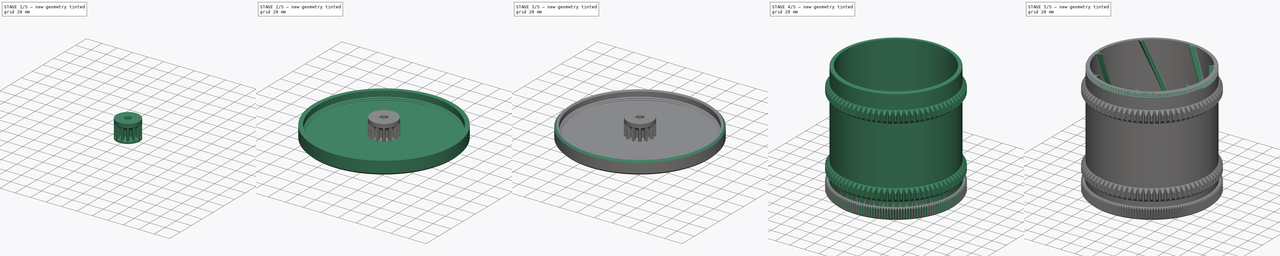
[diagram: build sequence overview — one tinted view per stage of 5, left to right]
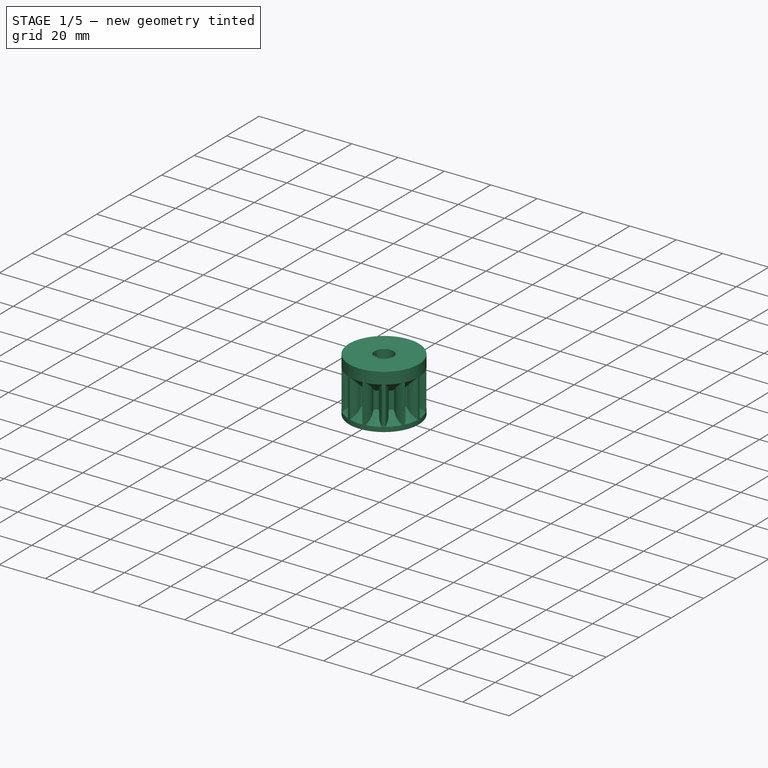
[diagram: stage 1 of 5 — iso view after this stage's code; geometry added in this stage tinted green]
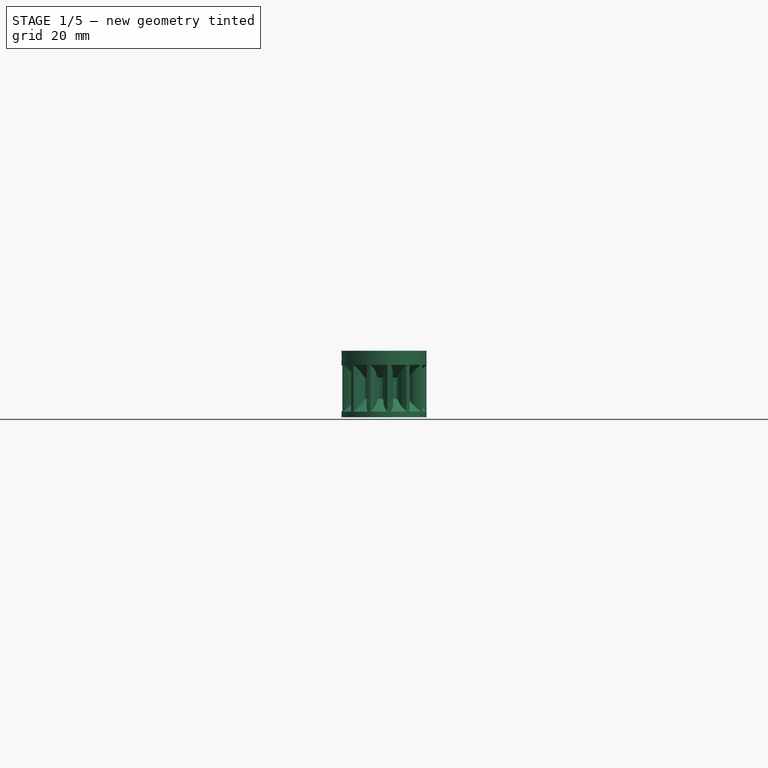
[diagram: stage 1 of 5 — front view after this stage's code; geometry added in this stage tinted green]
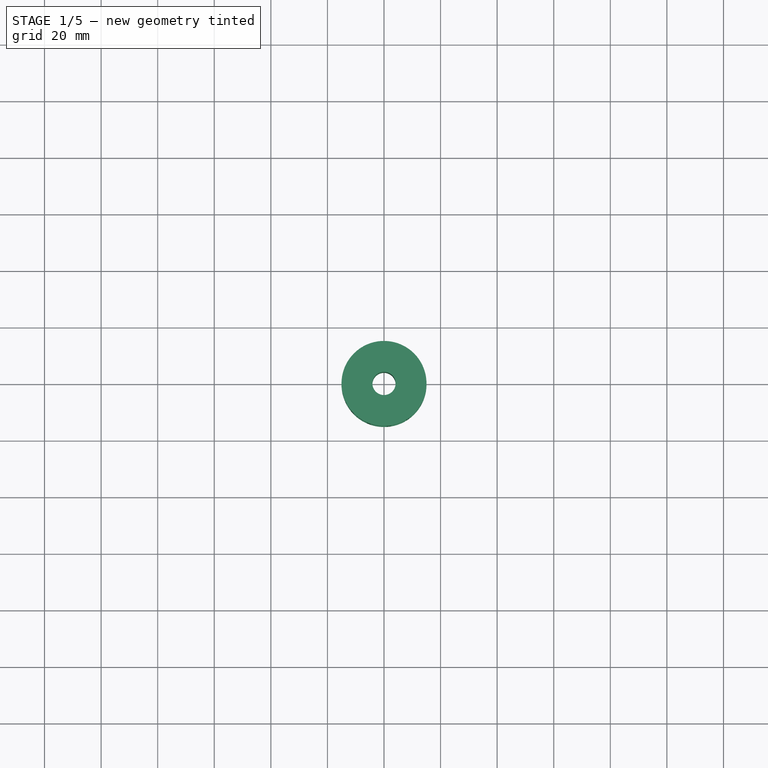
[diagram: stage 1 of 5 — top view after this stage's code; geometry added in this stage tinted green]
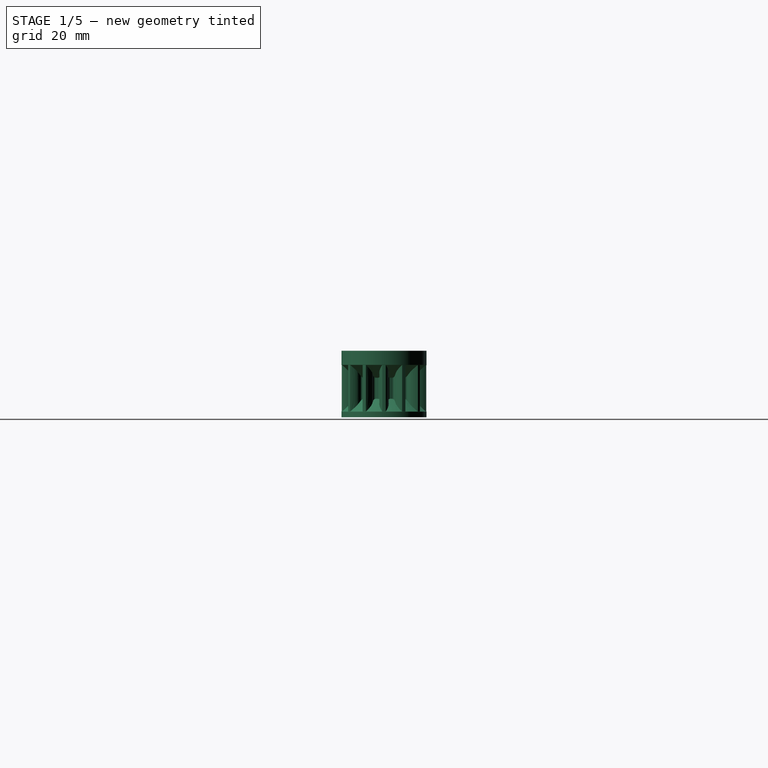
[diagram: stage 1 of 5 — right view after this stage's code; geometry added in this stage tinted green]
FCSTD DOCUMENT  (FreeCAD 0.20R29177 +426 (Git))
Label: _Rotary-Tumbler
License: Creative Commons Attribution
LicenseURL: http://creativecommons.org/licenses/by/4.0/
objects: Sketcher::SketchObject×11, PartDesign::Pocket×4, PartDesign::Chamfer×4, PartDesign::Pad×3, PartDesign::Body×3, Part::Part2DObjectPython×2, PartDesign::AdditiveHelix×2, PartDesign::PolarPattern×2, PartDesign::Revolution×2, PartDesign::Groove×1, PartDesign::SubtractiveHelix×1
note: 52 computed .brp shape members not serialized (recipe doc carries the construction recipe); baked Part::Feature solids carry a one-line shape summary decoded from their .brp

FEATURE [PartDesign::Body] Body001  label="Drum-Lid"
  Group = -> [Sketch004,Revolution,Sketch005,AdditiveHelix001,Sketch006,Pad001,Chamfer,Chamfer001,Sketch010,Pocket003,PolarPattern001]
  Origin = -> Origin001
  Tip = -> PolarPattern001
FEATURE [Part::Part2DObjectPython] InvoluteGear001  # Draft 2D object (typed FeaturePython)
  ExternalGear = true
  HighPrecision = true
  Modules = 2
  NumberOfTeeth = 13
  PressureAngle = 20
FEATURE [PartDesign::Pad] Pad002
  Direction = (0,0,1)
  Length = 20
  Length2 = 10
  Profile = -> InvoluteGear001
  ReferenceAxis = -> InvoluteGear001 [N_Axis]
  Type = 0
FEATURE [PartDesign::Revolution] Revolution001
  Angle = 360
  Axis = (0,-2e-16,1)
  Base = (0,0,0)
  BaseFeature = -> Pad002
  Profile = -> Sketch007
  ReferenceAxis = -> Sketch007 [V_Axis]
  Reversed = true
FEATURE [PartDesign::Pocket] Pocket004
  BaseFeature = -> Revolution001
  Direction = (0,0,-1)
  Length = 5
  Length2 = 5
  Midplane = true
  Profile = -> Sketch008
  ReferenceAxis = -> Sketch008 [N_Axis]
  Type = 1
FEATURE [PartDesign::Pocket] Pocket005
  BaseFeature = -> Pocket004
  Direction = (-1,2e-16,-3e-16)
  Length = 5
  Length2 = 5
  Profile = -> Sketch009
  ReferenceAxis = -> Sketch009 [N_Axis]
  Type = 1
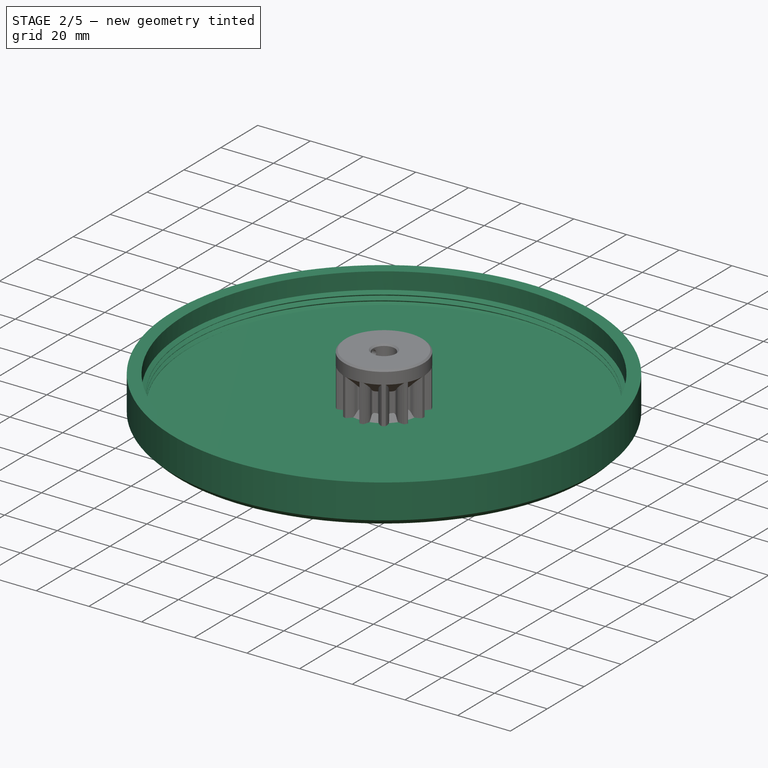
[diagram: stage 2 of 5 — iso view after this stage's code; geometry added in this stage tinted green]
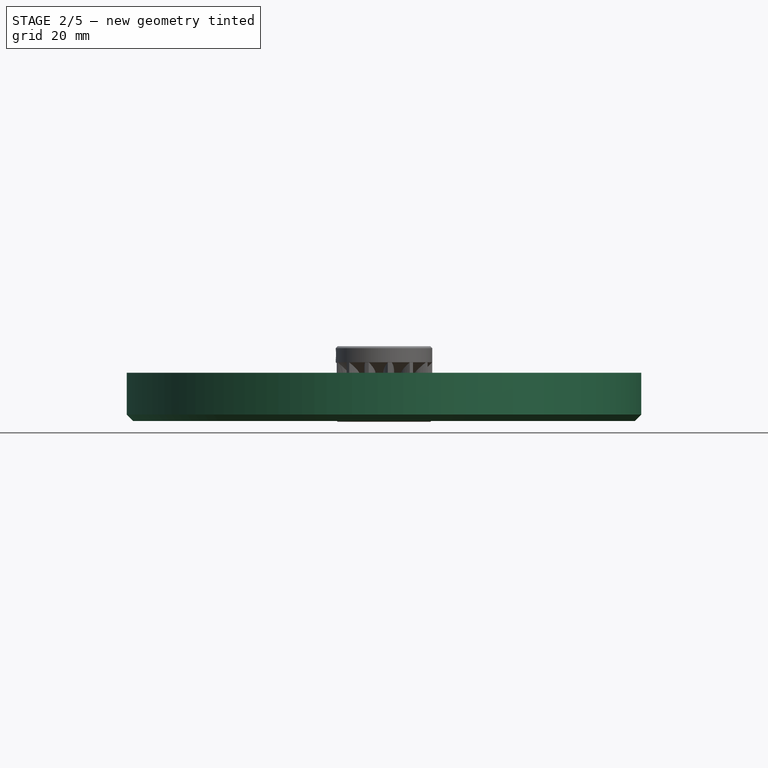
[diagram: stage 2 of 5 — front view after this stage's code; geometry added in this stage tinted green]
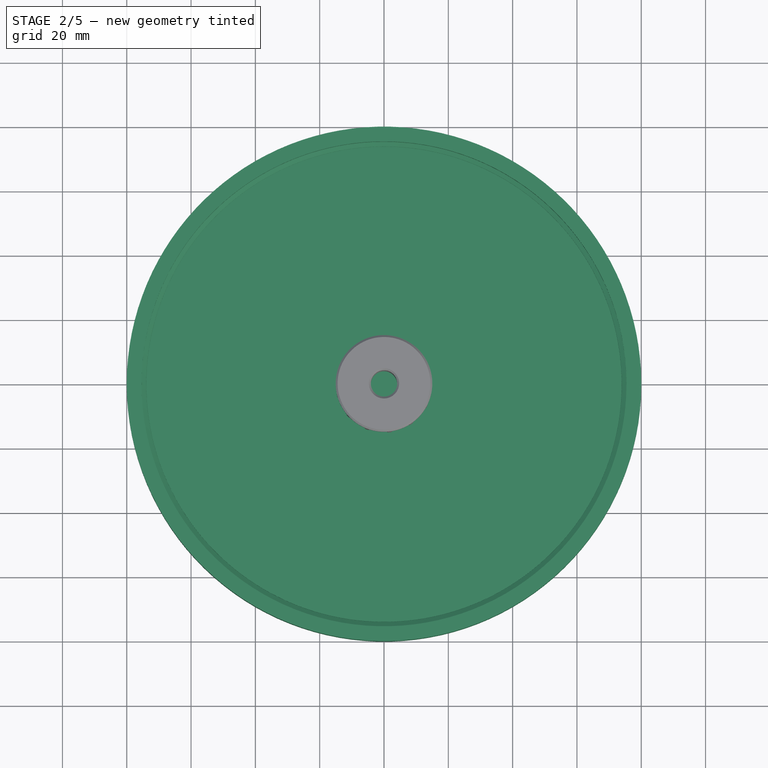
[diagram: stage 2 of 5 — top view after this stage's code; geometry added in this stage tinted green]
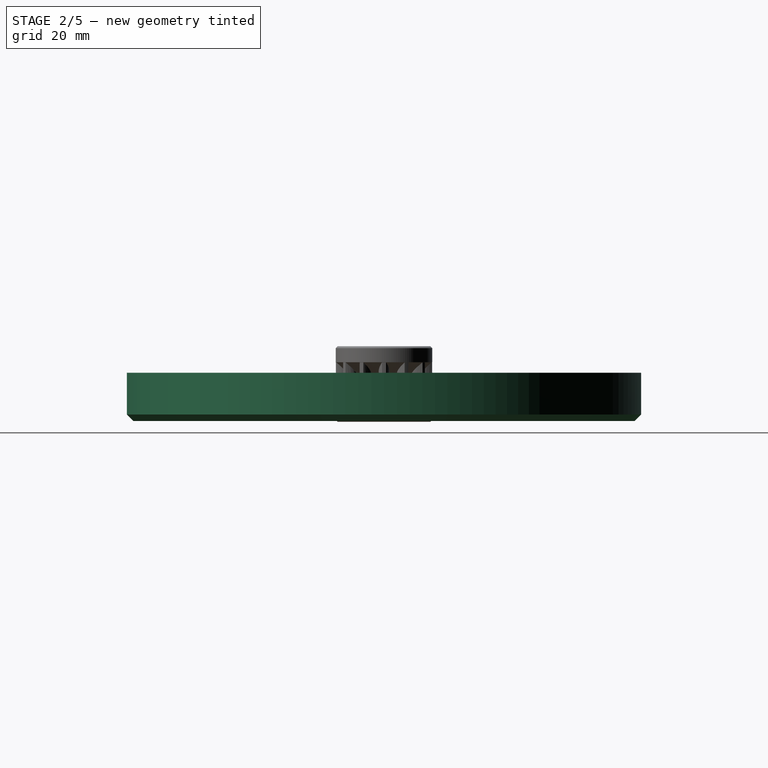
[diagram: stage 2 of 5 — right view after this stage's code; geometry added in this stage tinted green]
FEATURE [PartDesign::Body] Body  label="Drum-Body"
  Group = -> [InvoluteGear,Pad,Sketch,Groove,Sketch001,SubtractiveHelix,Sketch002,Pocket,Sketch003,AdditiveHelix,PolarPattern]
  Origin = -> Origin
  Tip = -> PolarPattern
FEATURE [Sketcher::SketchObject] Sketch004
  FullyConstrained = true
  MapMode = 5
  Placement = pos=(0,0,0) rot=(1,0,0;1.5708rad)
  Support = -> [XZ_Plane001]
  sketch-geometry (8):
    g0: LineSegment StartX=0 StartY=4 StartZ=0 EndX=0 EndY=0 EndZ=0
    g1: LineSegment StartX=0 StartY=0 StartZ=0 EndX=78 EndY=0 EndZ=0
    g2: LineSegment StartX=78 StartY=0 StartZ=0 EndX=80 EndY=2 EndZ=0
    g3: LineSegment StartX=80 StartY=2 StartZ=0 EndX=80 EndY=15 EndZ=0
    g4: LineSegment StartX=80 StartY=15 StartZ=0 EndX=75.4 EndY=15 EndZ=0
    g5: LineSegment StartX=75.4 StartY=15 StartZ=0 EndX=75.4 EndY=4.5 EndZ=0
    g6: LineSegment StartX=74.9 StartY=4 StartZ=0 EndX=0 EndY=4 EndZ=0
    g7: ArcOfCircle CenterX=74.9 CenterY=4.5 CenterZ=0 NormalX=0 NormalY=0 NormalZ=1 AngleXU=0 Radius=0.5 StartAngle=4.71239 EndAngle=6.28319
  constraints (22):
    c: Vertical(g0)
    c: Coincident(g0,g1)
    c: Horizontal(g1)
    c: Coincident(g1,g2)
    c: Coincident(g2,g3)
    c: Vertical(g3)
    c: Coincident(g3,g4)
    c: Coincident(g4,g5)
    c: Vertical(g5)
    c: Coincident(g6,g0)
    c: Horizontal(g6)
    c: Horizontal(g4)
    c: DistanceY(g1,g2) = 2
    c: Angle(g3,g2) = 2.35619
    c: DistanceY(g0,g0) = 4
    c: Tangent(g7,g5) = 1.5708
    c: Tangent(g7,g6) = 1.5708
    c: Radius(g7) = 0.5
    c: DistanceX(g-1,g4) = 75.4
    c: DistanceY(g1,g3) = 15
    c: Coincident(g0,g-1)
    c: DistanceX(g0,g2) = 80
FEATURE [PartDesign::Revolution] Revolution
  Angle = 360
  Axis = (0,-2e-16,1)
  Base = (0,0,0)
  Placement = pos=(0,0,0) rot=(1,0,0;1.5708rad)
  Profile = -> Sketch004
  ReferenceAxis = -> Sketch004 [V_Axis]
  Reversed = true
FEATURE [Sketcher::SketchObject] Sketch005
  FullyConstrained = true
  MapMode = 5
  Placement = pos=(0,0,0) rot=(1,0,0;1.5708rad)
  Support = -> [XZ_Plane001]
  sketch-geometry (6):
    g0: LineSegment StartX=75.5 StartY=4.01 StartZ=0 EndX=73.7506 EndY=3 EndZ=0
    g1: LineSegment StartX=73.7506 StartY=3 StartZ=0 EndX=75.5 EndY=1.99 EndZ=0
    g2: LineSegment StartX=75.5 StartY=1.99 StartZ=0 EndX=75.5 EndY=4.01 EndZ=0
    g3: LineSegment StartX=75.5 StartY=1.99 StartZ=0 EndX=73.9756 EndY=2.8701 EndZ=0
    g4: ArcOfCircle CenterX=74.0506 CenterY=3 CenterZ=0 NormalX=0 NormalY=0 NormalZ=1 AngleXU=0 Radius=0.15 StartAngle=2.0944 EndAngle=4.18879
    g5: LineSegment StartX=73.9756 StartY=3.1299 StartZ=0 EndX=75.5 EndY=4.01 EndZ=0
  constraints (16):
    c: Coincident(g0,g1)
    c: Coincident(g1,g2)
    c: Coincident(g2,g0)
    c: Vertical(g2)
    c: Equal(g0,g1)
    c: Equal(g1,g2)
    c: Coincident(g2,g3)
    c: Tangent(g3,g4) = 1.5708
    c: Tangent(g4,g5) = 1.5708
    c: Coincident(g5,g2)
    c: PointOnObject(g4,g0)
    c: PointOnObject(g3,g1)
    c: DistanceY(g2,g2) = 2.02
    c: Radius(g4) = 0.15
    c: DistanceX(g-1,g2) = 75.5
    c: DistanceY(g-1,g0) = 3
FEATURE [PartDesign::AdditiveHelix] AdditiveHelix001
  Angle = 0
  Axis = (0,-2e-16,1)
  Base = (0,0,0)
  BaseFeature = -> Revolution
  Growth = 0
  HasBeenEdited = true
  Height = 6
  LeftHanded = false
  Mode = 0
  Outside = false
  Pitch = 2
  Placement = pos=(0,0,0) rot=(1,0,0;1.5708rad)
  Profile = -> Sketch005
  ReferenceAxis = -> Sketch005 [V_Axis]
  Turns = 3
FEATURE [PartDesign::Chamfer] Chamfer002
  Angle = 45
  Base = -> Pocket005 [Edge400,Edge397,Edge403,Edge402]
  BaseFeature = -> Pocket005
  ChamferType = 0
  FlipDirection = false
  Size = 0.6
  Size2 = 1
  SupportTransform = false
  UseAllEdges = false
FEATURE [PartDesign::Chamfer] Chamfer003
  Angle = 45
  Base = -> Chamfer002 [Edge409]
  BaseFeature = -> Chamfer002
  ChamferType = 0
  FlipDirection = false
  Size = 0.4
  Size2 = 1
  SupportTransform = false
  UseAllEdges = false
FEATURE [PartDesign::Body] Body002  label="Transmission-Gear"
  Group = -> [Sketch007,Sketch008,Sketch009,InvoluteGear001,Pad002,Revolution001,Pocket004,Pocket005,Chamfer002,Chamfer003]
  Origin = -> Origin002
  Tip = -> Chamfer003
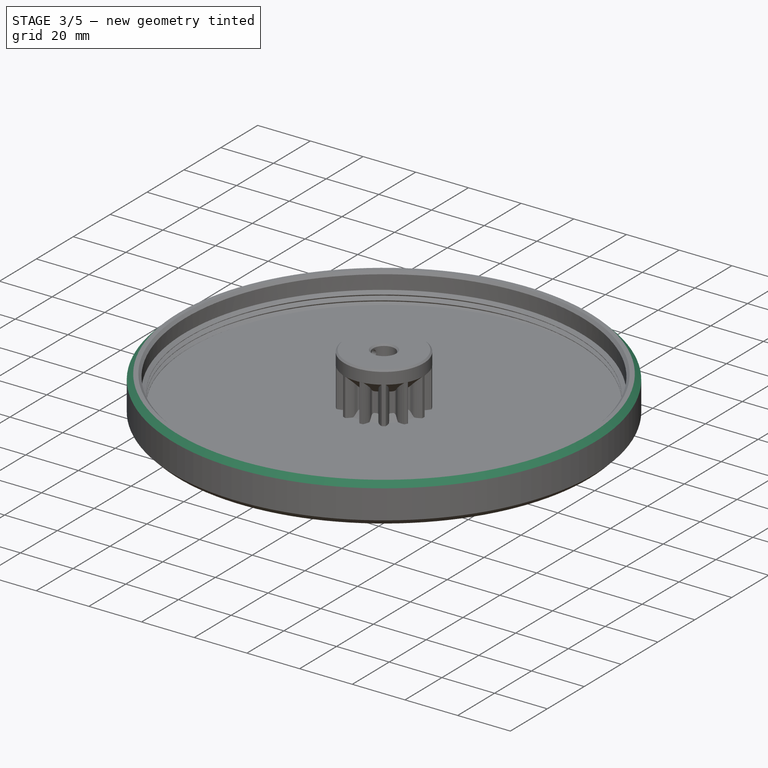
[diagram: stage 3 of 5 — iso view after this stage's code; geometry added in this stage tinted green]
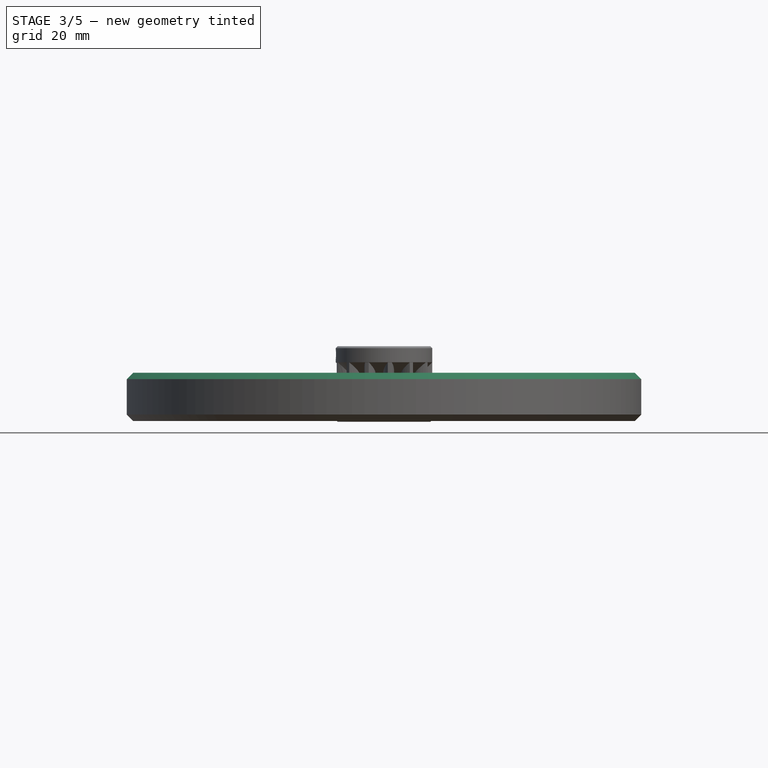
[diagram: stage 3 of 5 — front view after this stage's code; geometry added in this stage tinted green]
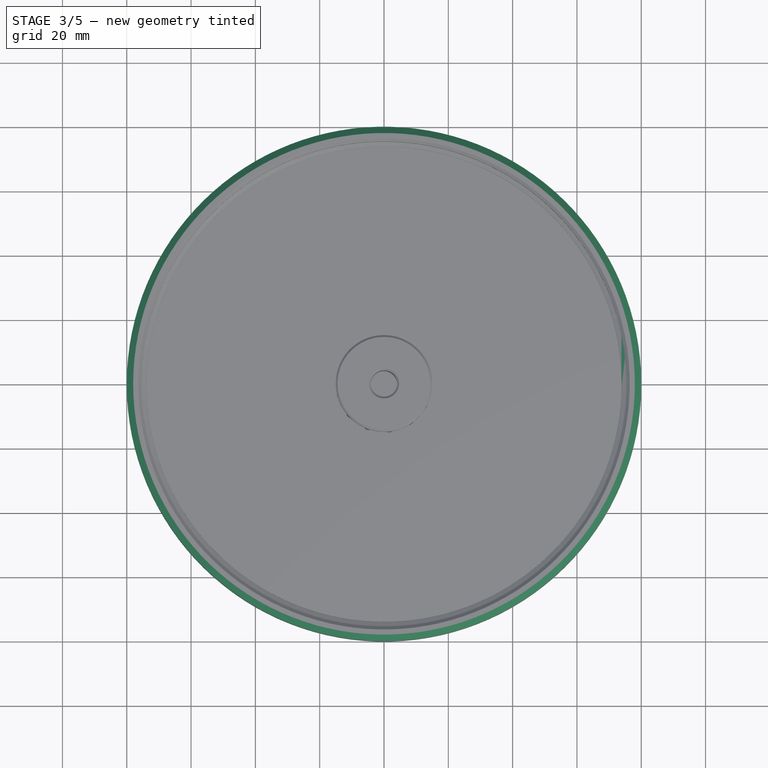
[diagram: stage 3 of 5 — top view after this stage's code; geometry added in this stage tinted green]
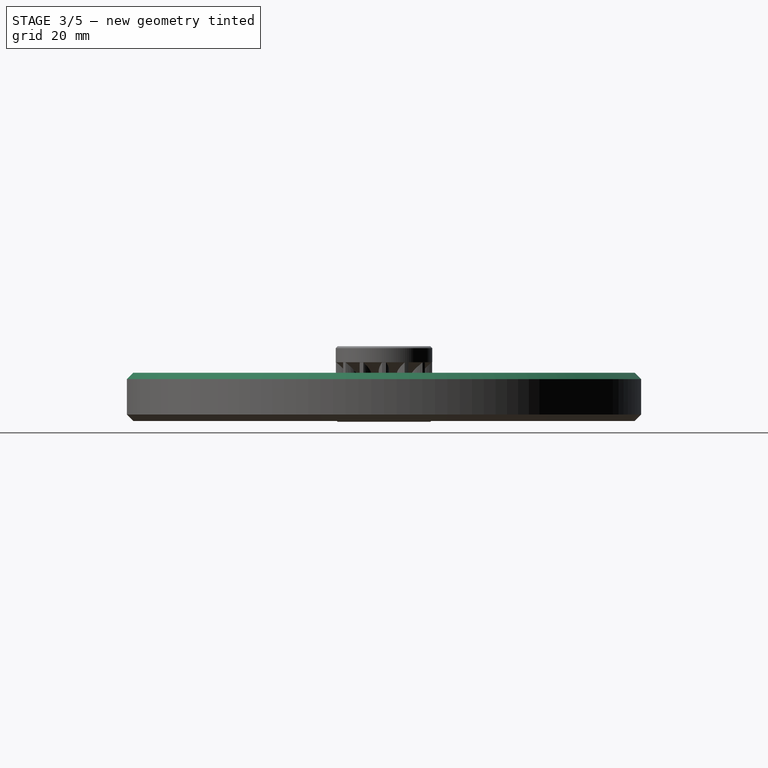
[diagram: stage 3 of 5 — right view after this stage's code; geometry added in this stage tinted green]
FEATURE [Sketcher::SketchObject] Sketch006
  FullyConstrained = true
  MapMode = 5
  Placement = pos=(0,0,0) rot=(1,0,0;1.5708rad)
  Support = -> [XZ_Plane001]
  expr: Constraints[12] = Sketch005.Constraints[12]
  expr: Constraints[13] = Sketch005.Constraints[13]
  expr: Constraints[14] = Sketch005.Constraints[14]
  sketch-geometry (6):
    g0: LineSegment StartX=75.5 StartY=10.01 StartZ=0 EndX=73.7506 EndY=9 EndZ=0
    g1: LineSegment StartX=73.7506 StartY=9 StartZ=0 EndX=75.5 EndY=7.99 EndZ=0
    g2: LineSegment StartX=75.5 StartY=7.99 StartZ=0 EndX=75.5 EndY=10.01 EndZ=0
    g3: LineSegment StartX=75.5 StartY=7.99 StartZ=0 EndX=73.9756 EndY=8.8701 EndZ=0
    g4: ArcOfCircle CenterX=74.0506 CenterY=9 CenterZ=0 NormalX=0 NormalY=0 NormalZ=1 AngleXU=0 Radius=0.15 StartAngle=2.0944 EndAngle=4.18879
    g5: LineSegment StartX=73.9756 StartY=9.1299 StartZ=0 EndX=75.5 EndY=10.01 EndZ=0
  constraints (16):
    c: Coincident(g0,g1)
    c: Coincident(g1,g2)
    c: Coincident(g2,g0)
    c: Vertical(g2)
    c: Equal(g0,g1)
    c: Equal(g1,g2)
    c: Coincident(g2,g3)
    c: Tangent(g3,g4) = 1.5708
    c: Tangent(g4,g5) = 1.5708
    c: Coincident(g5,g2)
    c: PointOnObject(g4,g0)
    c: PointOnObject(g3,g1)
    c: DistanceY(g2,g2) = 2.02
    c: Radius(g4) = 0.15
    c: DistanceX(g-1,g2) = 75.5
    c: DistanceY(g-1,g0) = 9
FEATURE [PartDesign::Pad] Pad001
  BaseFeature = -> AdditiveHelix001
  Direction = (0,-1,-2e-16)
  Length = 15
  Length2 = 10
  Placement = pos=(0,0,0) rot=(1,0,0;1.5708rad)
  Profile = -> Sketch006
  ReferenceAxis = -> Sketch006 [N_Axis]
  Reversed = true
  Type = 0
FEATURE [Sketcher::SketchObject] Sketch007
  FullyConstrained = true
  MapMode = 5
  Placement = pos=(0,0,0) rot=(1,0,0;1.5708rad)
  Support = -> [XZ_Plane002]
  expr: Constraints[16] = Pad002.Length / 2
  sketch-geometry (11):
    g0: LineSegment StartX=15.02 StartY=18.25 StartZ=0 EndX=10.02 EndY=13.25 EndZ=0
    g1: LineSegment StartX=10.02 StartY=13.25 StartZ=0 EndX=10.02 EndY=6.75 EndZ=0
    g2: LineSegment StartX=10.02 StartY=6.75 StartZ=0 EndX=15.02 EndY=1.75 EndZ=0
    g3: LineSegment StartX=15.02 StartY=1.75 StartZ=0 EndX=15.02 EndY=-0.25 EndZ=0
    g4: LineSegment StartX=15.02 StartY=-0.25 StartZ=0 EndX=0 EndY=-0.25 EndZ=0
    g5: LineSegment StartX=0 StartY=-0.25 StartZ=0 EndX=0 EndY=23.25 EndZ=0
    g6: LineSegment StartX=0 StartY=23.25 StartZ=0 EndX=15.02 EndY=23.25 EndZ=0
    g7: LineSegment StartX=15.02 StartY=23.25 StartZ=0 EndX=15.02 EndY=18.25 EndZ=0
    g8: LineSegment StartX=0 StartY=10 StartZ=0 EndX=10.02 EndY=10 EndZ=0
    g9: GeomPoint X=16.77 Y=0 Z=0
    g10: GeomPoint X=15.02 Y=20.75 Z=0
  constraints (31):
    c: Coincident(g0,g1)
    c: Vertical(g1)
    c: Coincident(g1,g2)
    c: Coincident(g2,g3)
    c: Vertical(g3)
    c: Coincident(g3,g4)
    c: Horizontal(g4)
    c: Coincident(g4,g5)
    c: PointOnObject(g5,g-2)
    c: Coincident(g5,g6)
    c: Horizontal(g6)
    c: Coincident(g6,g7)
    c: Coincident(g7,g0)
    c: Vertical(g7)
    c: PointOnObject(g8,g5)
    c: PointOnObject(g8,g1)
    c: DistanceY(g-1,g8) = 10
    c: DistanceY(g1,g1) = 6.5
    c: Symmetric(g1,g0,g8)
    c: Equal(g2,g0)
    c: Perpendicular(g0,g2)
    c: Vertical(g2,g0)
    c: PointOnObject(g9,g2)
    c: PointOnObject(g9,g-1)
    c: DistanceX(g1,g2) = 5
    c: DistanceX(g4,g4) = 15.02
    c: DistanceY(g3,g3) = 2
    c: Vertical(g5)
    c: DistanceY(g7,g7) = 5
    c: Symmetric(g0,g6,g10)
    c: DistanceY(g-1,g10) = 20.75
FEATURE [Sketcher::SketchObject] Sketch008
  AttachmentOffset = pos=(0,0,5) rot=(0,0,1;0rad)
  FullyConstrained = true
  MapMode = 5
  Placement = pos=(0,0,5) rot=(0,0,1;0rad)
  Support = -> [XY_Plane002]
  expr: .AttachmentOffset.Base.z = Pad002.Length / 2
  sketch-geometry (1):
    g0: Circle CenterX=0 CenterY=0 CenterZ=0 NormalX=0 NormalY=0 NormalZ=1 AngleXU=0 Radius=4.1
  constraints (2):
    c: Coincident(g0,g-1)
    c: Diameter(g0) = 8.2
FEATURE [Sketcher::SketchObject] Sketch009
  FullyConstrained = true
  MapMode = 5
  Placement = pos=(0,0,0) rot=(0.57735,0.57735,0.57735;2.0944rad)
  Support = -> [YZ_Plane002]
  expr: Constraints[2] = Sketch007.Constraints[30]
  sketch-geometry (1):
    g0: Circle CenterX=0 CenterY=20.75 CenterZ=0 NormalX=0 NormalY=0 NormalZ=1 AngleXU=0 Radius=1.35
  constraints (3):
    c: PointOnObject(g0,g-2)
    c: Diameter(g0) = 2.7
    c: DistanceY(g-1,g0) = 20.75
FEATURE [PartDesign::Chamfer] Chamfer
  Angle = 45
  Base = -> Pad001 [Edge6]
  BaseFeature = -> Pad001
  ChamferType = 0
  FlipDirection = false
  Placement = pos=(0,0,0) rot=(1,0,0;1.5708rad)
  Size = 1
  Size2 = 1
  SupportTransform = false
  UseAllEdges = false
FEATURE [PartDesign::Chamfer] Chamfer001
  Angle = 45
  Base = -> Chamfer [Edge2]
  BaseFeature = -> Chamfer
  ChamferType = 0
  FlipDirection = false
  Placement = pos=(0,0,0) rot=(1,0,0;1.5708rad)
  Size = 2
  Size2 = 1
  SupportTransform = false
  UseAllEdges = false
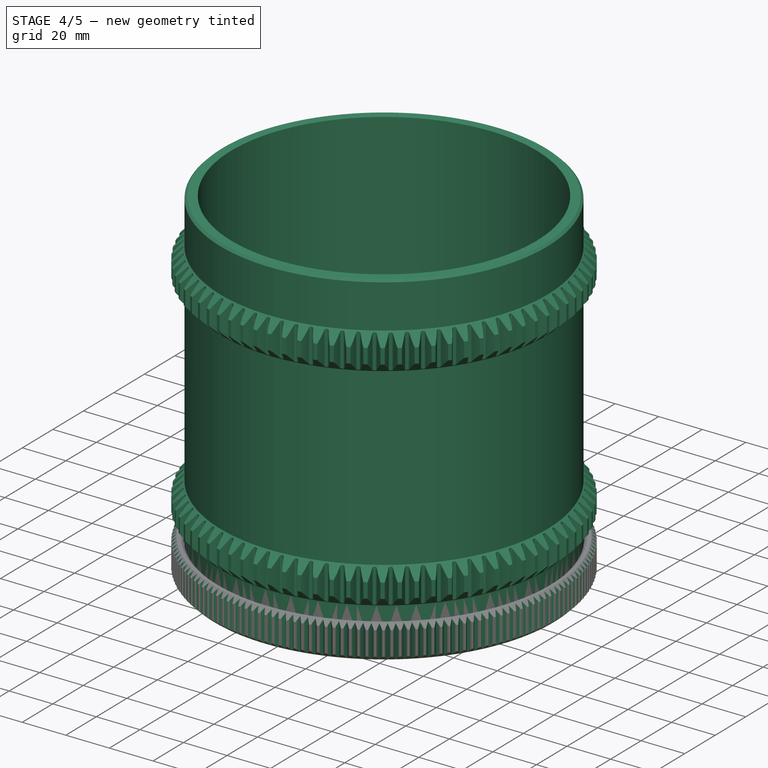
[diagram: stage 4 of 5 — iso view after this stage's code; geometry added in this stage tinted green]
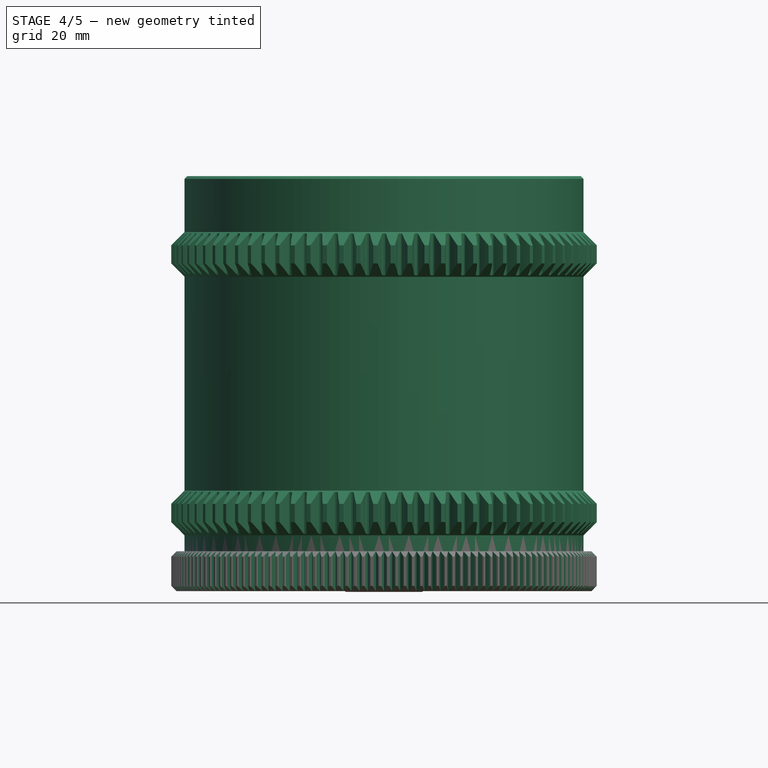
[diagram: stage 4 of 5 — front view after this stage's code; geometry added in this stage tinted green]
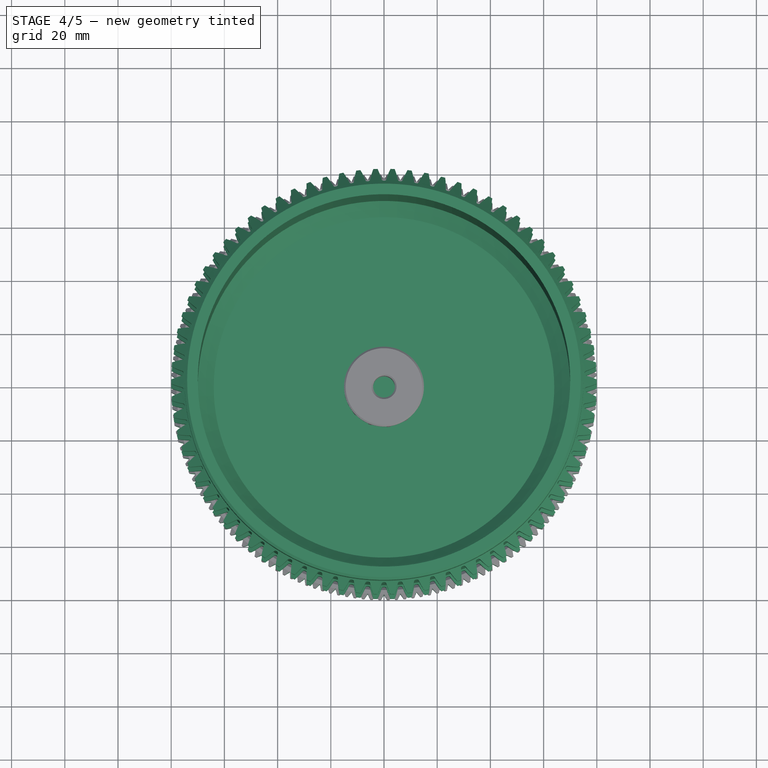
[diagram: stage 4 of 5 — top view after this stage's code; geometry added in this stage tinted green]
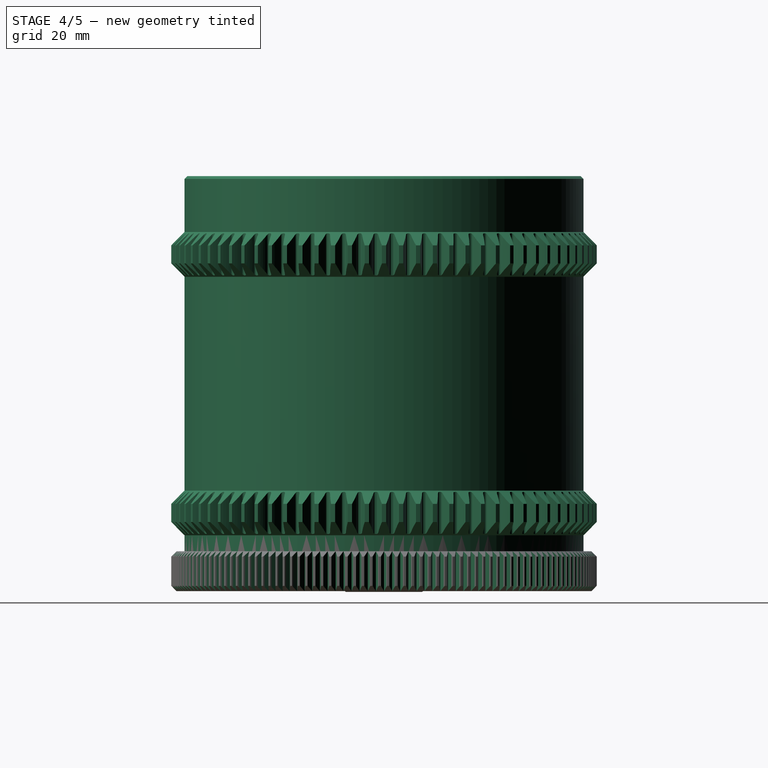
[diagram: stage 4 of 5 — right view after this stage's code; geometry added in this stage tinted green]
FEATURE [Part::Part2DObjectPython] InvoluteGear  # Draft 2D object (typed FeaturePython)
  ExternalGear = true
  HighPrecision = true
  Modules = 2
  NumberOfTeeth = 78
  PressureAngle = 20
FEATURE [PartDesign::Pad] Pad
  Direction = (0,0,1)
  Length = 156
  Length2 = 10
  Profile = -> InvoluteGear
  ReferenceAxis = -> InvoluteGear [N_Axis]
  Type = 0
FEATURE [Sketcher::SketchObject] Sketch
  FullyConstrained = true
  MapMode = 5
  Placement = pos=(0,0,0) rot=(1,0,0;1.5708rad)
  Support = -> [XZ_Plane]
  sketch-geometry (26):
    g0: LineSegment StartX=0 StartY=0 StartZ=0 EndX=66.0711 EndY=0 EndZ=0
    g1: LineSegment StartX=66.0711 StartY=0 StartZ=0 EndX=75 EndY=8.92893 EndZ=0
    g2: LineSegment StartX=75 StartY=8.92893 StartZ=0 EndX=75 EndY=21 EndZ=0
    g3: LineSegment StartX=75 StartY=21 StartZ=0 EndX=80.4 EndY=26.4 EndZ=0
    g4: LineSegment StartX=80.4 StartY=26.4 StartZ=0 EndX=80.4 EndY=32.4 EndZ=0
    g5: LineSegment StartX=80.4 StartY=32.4 StartZ=0 EndX=75 EndY=37.8 EndZ=0
    g6: LineSegment StartX=75 StartY=37.8 StartZ=0 EndX=75 EndY=118.2 EndZ=0
    g7: LineSegment StartX=75 StartY=118.2 StartZ=0 EndX=80.4 EndY=123.6 EndZ=0
    g8: LineSegment StartX=80.4 StartY=123.6 StartZ=0 EndX=80.4 EndY=129.6 EndZ=0
    g9: LineSegment StartX=80.4 StartY=129.6 StartZ=0 EndX=75 EndY=135 EndZ=0
    g10: LineSegment StartX=75 StartY=135 StartZ=0 EndX=75 EndY=155 EndZ=0
    g11: LineSegment StartX=0 StartY=165 StartZ=0 EndX=90 EndY=165 EndZ=0
    g12: LineSegment StartX=90 StartY=165 StartZ=0 EndX=90 EndY=-5 EndZ=0
    g13: LineSegment StartX=90 StartY=-5 StartZ=0 EndX=0 EndY=-5 EndZ=0
    g14: LineSegment StartX=0 StartY=-5 StartZ=0 EndX=0 EndY=0 EndZ=0
    g15: LineSegment StartX=73 StartY=157 StartZ=0 EndX=70 EndY=157 EndZ=0
    g16: LineSegment StartX=70 StartY=157 StartZ=0 EndX=70 EndY=11 EndZ=0
    g17: LineSegment StartX=70 StartY=11 StartZ=0 EndX=64 EndY=5 EndZ=0
    g18: LineSegment StartX=64 StartY=5 StartZ=0 EndX=0 EndY=5 EndZ=0
    g19: LineSegment StartX=0 StartY=5 StartZ=0 EndX=0 EndY=165 EndZ=0
    g20: LineSegment StartX=0 StartY=0 StartZ=0 EndX=0 EndY=5 EndZ=0
    g21: LineSegment StartX=64 StartY=5 StartZ=0 EndX=67.5355 EndY=1.46447 EndZ=0
    g22: LineSegment StartX=70 StartY=11 StartZ=0 EndX=75 EndY=11 EndZ=0
    g23: LineSegment StartX=75 StartY=37.8 StartZ=0 EndX=75 EndY=21 EndZ=0
    g24: LineSegment StartX=75 StartY=135 StartZ=0 EndX=75 EndY=118.2 EndZ=0
    g25: LineSegment StartX=75 StartY=155 StartZ=0 EndX=73 EndY=157 EndZ=0
  constraints (75):
    c: Coincident(g-1,g0)
    c: Horizontal(g0)
    c: Coincident(g0,g1)
    c: Coincident(g1,g2)
    c: Vertical(g2)
    c: Coincident(g2,g3)
    c: Coincident(g3,g4)
    c: Vertical(g4)
    c: Coincident(g4,g5)
    c: Coincident(g5,g6)
    c: Vertical(g6)
    c: Coincident(g6,g7)
    c: Coincident(g7,g8)
    c: Vertical(g8)
    c: Coincident(g8,g9)
    c: Coincident(g9,g10)
    c: Vertical(g10)
    c: Horizontal(g11)
    c: Coincident(g11,g12)
    c: Vertical(g12)
    c: Coincident(g12,g13)
    c: Horizontal(g13)
    c: Coincident(g13,g14)
    c: Coincident(g14,g0)
    c: Horizontal(g15)
    c: Coincident(g15,g16)
    c: Vertical(g16)
    c: Coincident(g16,g17)
    c: Coincident(g17,g18)
    c: Horizontal(g18)
    c: Coincident(g18,g19)
    c: PointOnObject(g19,g-2)
    c: Vertical(g19)
    c: Coincident(g11,g19)
    c: Coincident(g20,g0)
    c: Coincident(g20,g18)
    c: Coincident(g21,g17)
    c: PointOnObject(g21,g1)
    c: Coincident(g22,g16)
    c: PointOnObject(g22,g2)
    c: Horizontal(g22)
    c: Perpendicular(g21,g1)
    c: Vertical(g4,g7)
    c: Coincident(g23,g5)
    c: Coincident(g23,g2)
    c: Vertical(g23)
    c: Coincident(g24,g9)
    c: Coincident(g24,g6)
    c: Vertical(g24)
    c: Equal(g9,g7)
    c: Equal(g7,g5)
    c: Equal(g5,g3)
    c: Equal(g23,g24)
    c: Angle(g1,g-1) = 2.35619
    c: Equal(g20,g21)
    c: Equal(g21,g22)
    c: Parallel(g1,g17)
    c: DistanceY(g17,g16) = 6
    c: DistanceY(g20,g20) = 5
    c: DistanceX(g11,g15) = 70
    c: Perpendicular(g9,g7)
    c: DistanceY(g4,g4) = 6
    c: DistanceX(g13,g3) = 80.4
    c: DistanceY(g17,g2) = 16
    c: Vertical(g14)
    c: Equal(g20,g14)
    c: DistanceX(g13,g13) = 90
    c: DistanceY(g12,g12) = 170
    c: Perpendicular(g25,g7)
    c: DistanceY(g25,g25) = 2
    c: Coincident(g10,g25)
    c: Coincident(g15,g25)
    c: DistanceY(g-1,g15) = 157
    c: DistanceY(g9,g15) = 22
    c: DistanceX(g5,g4) = 5.4
FEATURE [PartDesign::Groove] Groove
  Angle = 360
  Axis = (0,-2e-16,1)
  Base = (0,0,0)
  BaseFeature = -> Pad
  Profile = -> Sketch
  ReferenceAxis = -> Sketch [V_Axis]
FEATURE [Sketcher::SketchObject] Sketch010
  FullyConstrained = true
  MapMode = 5
  Support = -> [XY_Plane001]
  sketch-geometry (3):
    g0: LineSegment StartX=78 StartY=0 StartZ=0 EndX=81.4641 EndY=2 EndZ=0
    g1: LineSegment StartX=81.4641 StartY=2 StartZ=0 EndX=81.4641 EndY=-2 EndZ=0
    g2: LineSegment StartX=81.4641 StartY=-2 StartZ=0 EndX=78 EndY=0 EndZ=0
  constraints (9):
    c: PointOnObject(g0,g-1)
    c: Coincident(g0,g1)
    c: Coincident(g1,g2)
    c: Coincident(g2,g0)
    c: Vertical(g1)
    c: Equal(g0,g1)
    c: Equal(g1,g2)
    c: DistanceY(g1,g1) = 4
    c: DistanceX(g-1,g0) = 78
FEATURE [PartDesign::Pocket] Pocket003
  BaseFeature = -> Chamfer001
  Direction = (0,0,-1)
  Length = 5
  Length2 = 5
  Placement = pos=(0,0,0) rot=(1,0,0;1.5708rad)
  Profile = -> Sketch010
  ReferenceAxis = -> Sketch010 [N_Axis]
  Reversed = true
  Type = 1
FEATURE [PartDesign::PolarPattern] PolarPattern001
  Angle = 360
  Axis = -> Sketch010 [N_Axis]
  BaseFeature = -> Pocket003
  Occurrences = 160
  Originals = -> [Pocket003]
  Placement = pos=(0,0,0) rot=(1,0,0;1.5708rad)
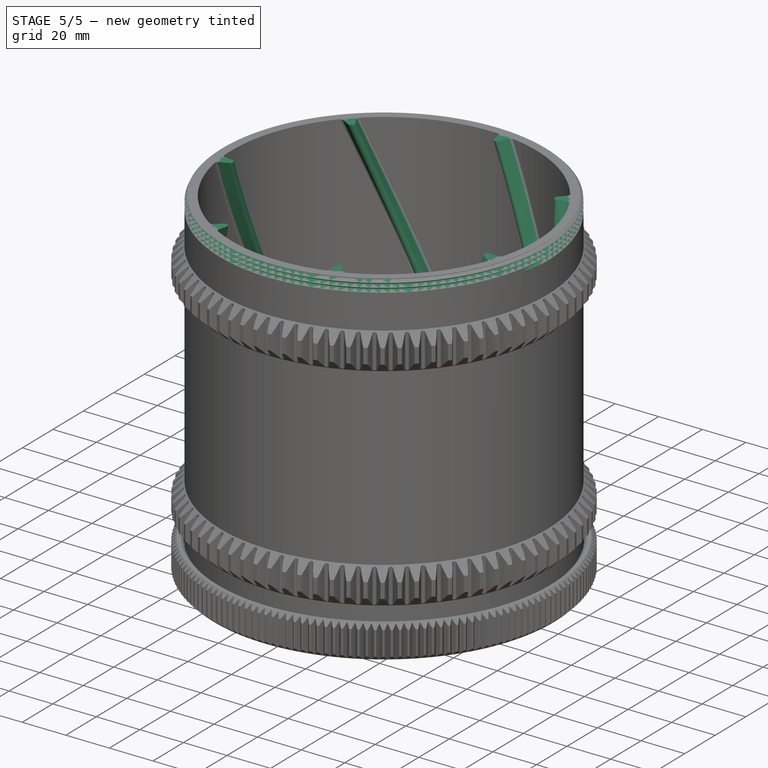
[diagram: stage 5 of 5 — iso view after this stage's code; geometry added in this stage tinted green]
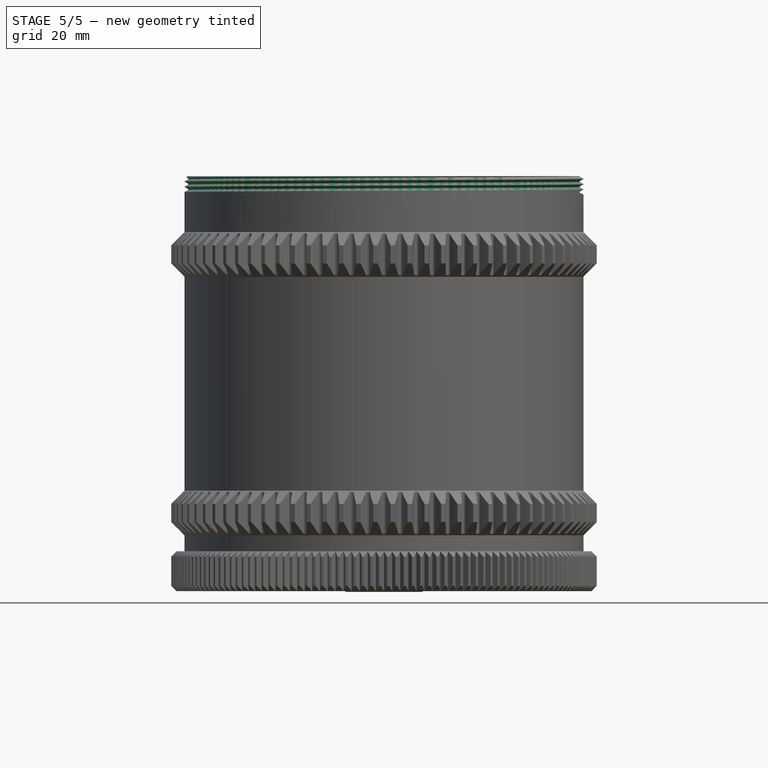
[diagram: stage 5 of 5 — front view after this stage's code; geometry added in this stage tinted green]
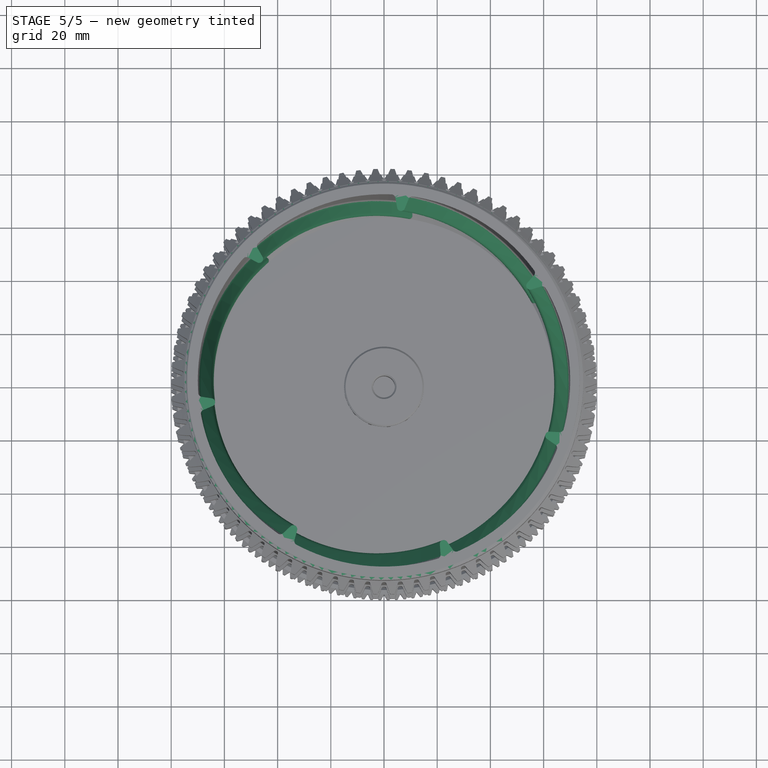
[diagram: stage 5 of 5 — top view after this stage's code; geometry added in this stage tinted green]
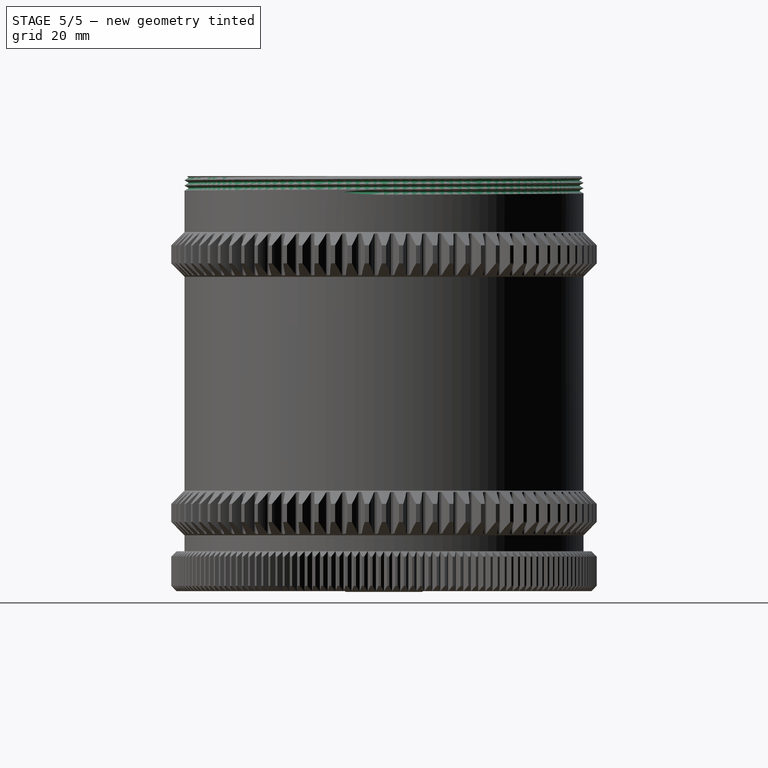
[diagram: stage 5 of 5 — right view after this stage's code; geometry added in this stage tinted green]
FEATURE [Sketcher::SketchObject] Sketch001
  FullyConstrained = true
  MapMode = 5
  Placement = pos=(0,0,0) rot=(1,0,0;1.5708rad)
  Support = -> [XZ_Plane]
  sketch-geometry (6):
    g0: LineSegment StartX=75.1 StartY=151.01 StartZ=0 EndX=73.3506 EndY=150 EndZ=0
    g1: LineSegment StartX=73.3506 StartY=150 StartZ=0 EndX=75.1 EndY=148.99 EndZ=0
    g2: LineSegment StartX=75.1 StartY=148.99 StartZ=0 EndX=75.1 EndY=151.01 EndZ=0
    g3: LineSegment StartX=75.1 StartY=148.99 StartZ=0 EndX=73.5756 EndY=149.87 EndZ=0
    g4: ArcOfCircle CenterX=73.6506 CenterY=150 CenterZ=0 NormalX=0 NormalY=0 NormalZ=1 AngleXU=0 Radius=0.15 StartAngle=2.0944 EndAngle=4.18879
    g5: LineSegment StartX=73.5756 StartY=150.13 StartZ=0 EndX=75.1 EndY=151.01 EndZ=0
  constraints (16):
    c: Coincident(g0,g1)
    c: Coincident(g1,g2)
    c: Coincident(g2,g0)
    c: Vertical(g2)
    c: Equal(g0,g1)
    c: Equal(g1,g2)
    c: Coincident(g2,g3)
    c: Tangent(g3,g4) = 1.5708
    c: Tangent(g4,g5) = 1.5708
    c: Coincident(g5,g2)
    c: PointOnObject(g4,g0)
    c: PointOnObject(g3,g1)
    c: DistanceY(g2,g2) = 2.02
    c: Radius(g4) = 0.15
    c: DistanceY(g-1,g0) = 150
    c: DistanceX(g-1,g2) = 75.1
FEATURE [PartDesign::SubtractiveHelix] SubtractiveHelix  label="Gewinde_M150x2"
  Angle = 0
  Axis = (0,-2e-16,1)
  Base = (0,0,0)
  BaseFeature = -> Groove
  Growth = 0
  HasBeenEdited = true
  Height = 6.5
  LeftHanded = false
  Mode = 0
  Outside = false
  Pitch = 2
  Profile = -> Sketch001
  ReferenceAxis = -> Sketch001 [V_Axis]
  Turns = 3.25
FEATURE [Sketcher::SketchObject] Sketch002
  FullyConstrained = true
  MapMode = 5
  Placement = pos=(0,0,0) rot=(1,0,0;1.5708rad)
  Support = -> [XZ_Plane]
  expr: Constraints[12] = Sketch001.Constraints[12]
  expr: Constraints[13] = Sketch001.Constraints[13]
  expr: Constraints[14] = Sketch001.Constraints[14]
  expr: Constraints[15] = Sketch001.Constraints[15]
  sketch-geometry (6):
    g0: LineSegment StartX=75.1 StartY=151.01 StartZ=0 EndX=73.3506 EndY=150 EndZ=0
    g1: LineSegment StartX=73.3506 StartY=150 StartZ=0 EndX=75.1 EndY=148.99 EndZ=0
    g2: LineSegment StartX=75.1 StartY=148.99 StartZ=0 EndX=75.1 EndY=151.01 EndZ=0
    g3: LineSegment StartX=75.1 StartY=148.99 StartZ=0 EndX=73.5756 EndY=149.87 EndZ=0
    g4: ArcOfCircle CenterX=73.6506 CenterY=150 CenterZ=0 NormalX=0 NormalY=0 NormalZ=1 AngleXU=0 Radius=0.15 StartAngle=2.0944 EndAngle=4.18879
    g5: LineSegment StartX=73.5756 StartY=150.13 StartZ=0 EndX=75.1 EndY=151.01 EndZ=0
  constraints (16):
    c: Coincident(g0,g1)
    c: Coincident(g1,g2)
    c: Coincident(g2,g0)
    c: Vertical(g2)
    c: Equal(g0,g1)
    c: Equal(g1,g2)
    c: Coincident(g2,g3)
    c: Tangent(g3,g4) = 1.5708
    c: Tangent(g4,g5) = 1.5708
    c: Coincident(g5,g2)
    c: PointOnObject(g4,g0)
    c: PointOnObject(g3,g1)
    c: DistanceY(g2,g2) = 2.02
    c: Radius(g4) = 0.15
    c: DistanceY(g-1,g0) = 150
    c: DistanceX(g-1,g2) = 75.1
FEATURE [PartDesign::Pocket] Pocket  label="Gewindwauslauf"
  BaseFeature = -> SubtractiveHelix
  Direction = (0,1,2e-16)
  Length = 5
  Length2 = 5
  Profile = -> Sketch002
  ReferenceAxis = -> Sketch002 [N_Axis]
  Reversed = true
  Type = 1
FEATURE [Sketcher::SketchObject] Sketch003
  AttachmentOffset = pos=(0,0,5) rot=(0,0,1;0rad)
  FullyConstrained = true
  MapMode = 5
  Placement = pos=(0,0,5) rot=(0,0,1;0rad)
  Support = -> [XY_Plane]
  sketch-geometry (8):
    g0: ArcOfCircle CenterX=0 CenterY=0 CenterZ=0 NormalX=0 NormalY=0 NormalZ=1 AngleXU=0 Radius=70 StartAngle=0.466012 EndAngle=0.581186
    g1: LineSegment StartX=0 StartY=0 StartZ=0 EndX=60.6218 EndY=35 EndZ=0
    g2: ArcOfCircle CenterX=56.7247 CenterY=32.75 CenterZ=0 NormalX=0 NormalY=0 NormalZ=1 AngleXU=0 Radius=1.5 StartAngle=2.37214 EndAngle=4.95824
    g3: GeomPoint X=55.4256 Y=32 Z=0
    g4: LineSegment StartX=57.0897 StartY=31.2951 StartZ=0 EndX=60.8306 EndY=32.2338 EndZ=0
    g5: LineSegment StartX=55.6472 StartY=33.7936 StartZ=0 EndX=58.3306 EndY=36.5639 EndZ=0
    g6: ArcOfCircle CenterX=61.1957 CenterY=30.7789 CenterZ=0 NormalX=0 NormalY=0 NormalZ=1 AngleXU=0 Radius=1.5 StartAngle=0.466012 EndAngle=1.81665
    g7: ArcOfCircle CenterX=57.2531 CenterY=37.6075 CenterZ=0 NormalX=0 NormalY=0 NormalZ=1 AngleXU=0 Radius=1.5 StartAngle=5.51373 EndAngle=6.86437
  constraints (19):
    c: Coincident(g0,g-1)
    c: Coincident(g1,g0)
    c: PointOnObject(g1,g0)
    c: PointOnObject(g2,g1)
    c: Distance(g1) = 70
    c: PointOnObject(g3,g2)
    c: PointOnObject(g3,g1)
    c: Distance(g3,g1) = 6
    c: Tangent(g4,g2) = -1.5708
    c: Tangent(g5,g2) = 1.5708
    c: Tangent(g7,g5) = -1.5708
    c: Tangent(g6,g4) = 1.5708
    c: Tangent(g6,g0) = -1.5708
    c: Tangent(g7,g0) = -1.5708
    c: Equal(g7,g2)
    c: Radius(g2) = 1.5
    c: Symmetric(g7,g6,g1)
    c: Distance(g4,g5) = 5
    c: Angle(g-1,g1) = 0.523599
FEATURE [PartDesign::AdditiveHelix] AdditiveHelix
  Angle = 0
  Axis = (-3e-16,3e-16,1)
  Base = (0,0,0)
  BaseFeature = -> Pocket
  Growth = 0
  HasBeenEdited = true
  Height = 151
  LeftHanded = false
  Mode = 0
  Outside = false
  Pitch = 1000
  Profile = -> Sketch003
  ReferenceAxis = -> Z_Axis
  Turns = 0.151
FEATURE [PartDesign::PolarPattern] PolarPattern
  Angle = 360
  Axis = -> Sketch003 [N_Axis]
  BaseFeature = -> AdditiveHelix
  Occurrences = 7
  Originals = -> [AdditiveHelix]
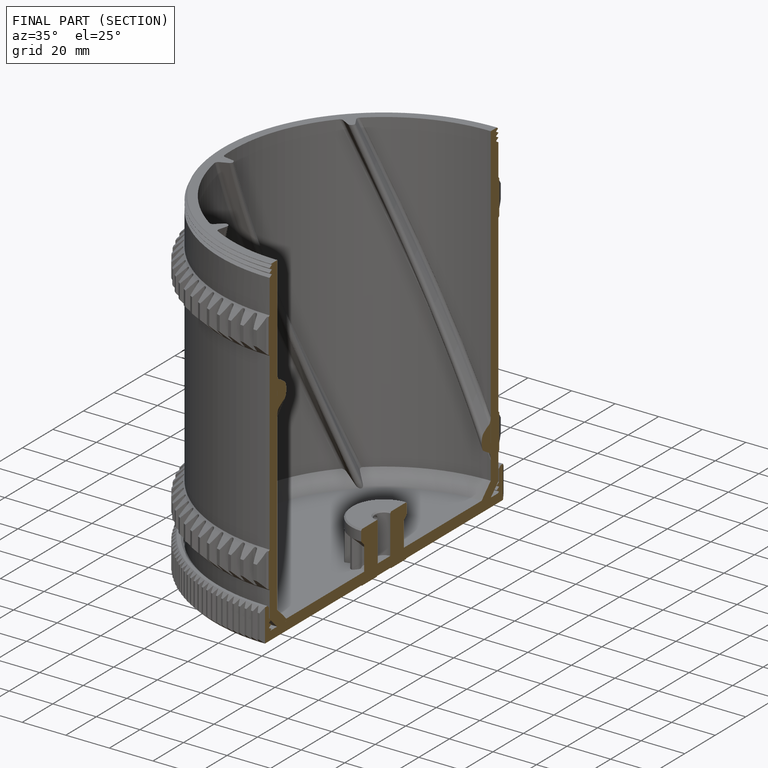
[diagram: finished part — half-section view (interior)]
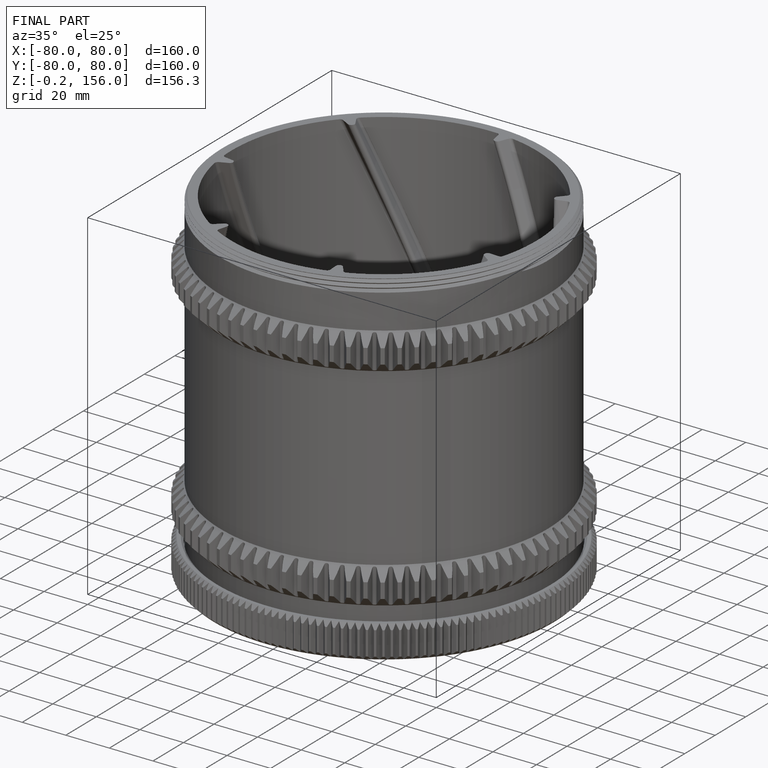
[diagram: finished part — iso view with bounding-box wireframe]
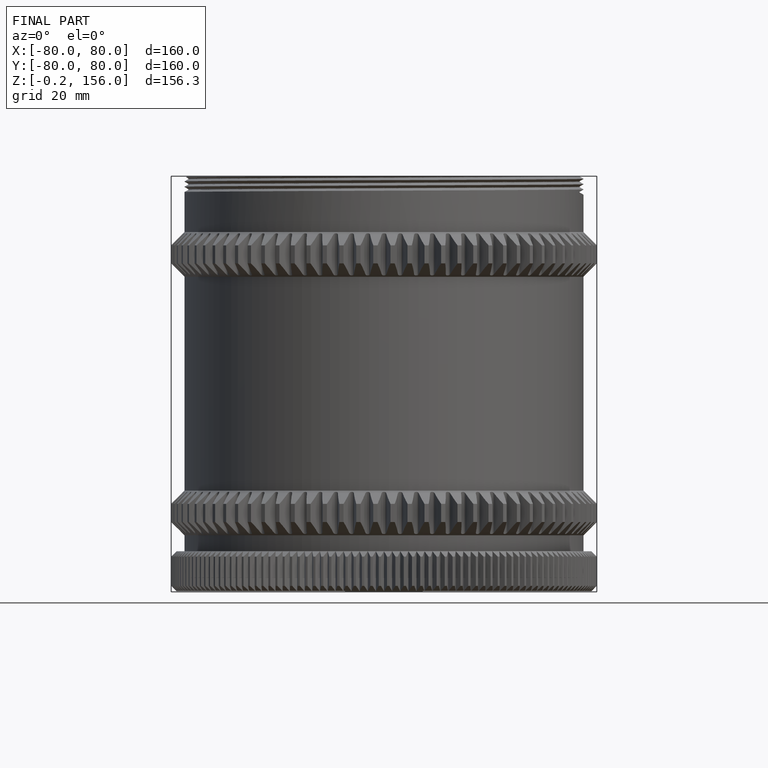
[diagram: finished part — front view with bounding-box wireframe]
